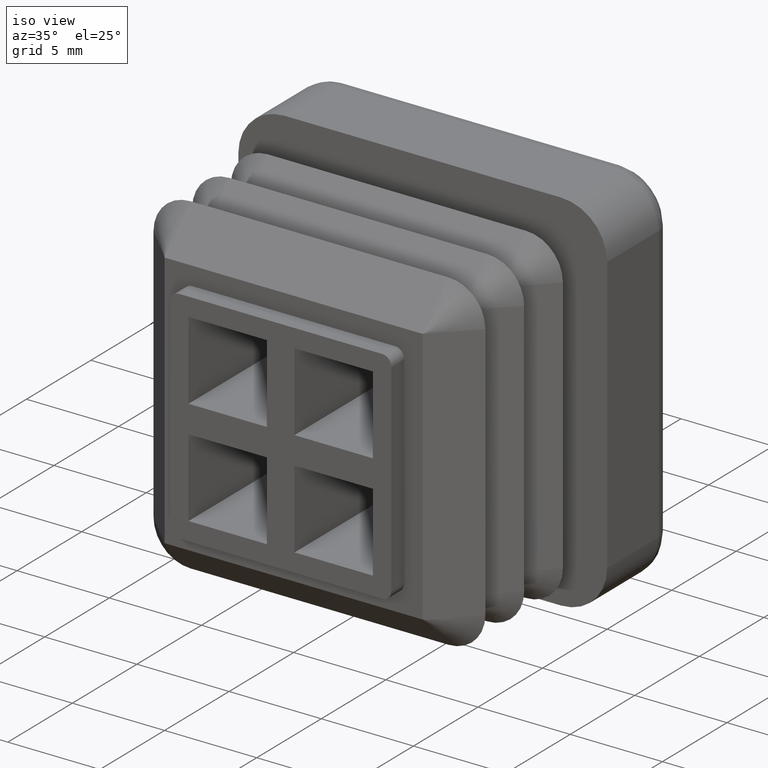
[diagram: clean part render]
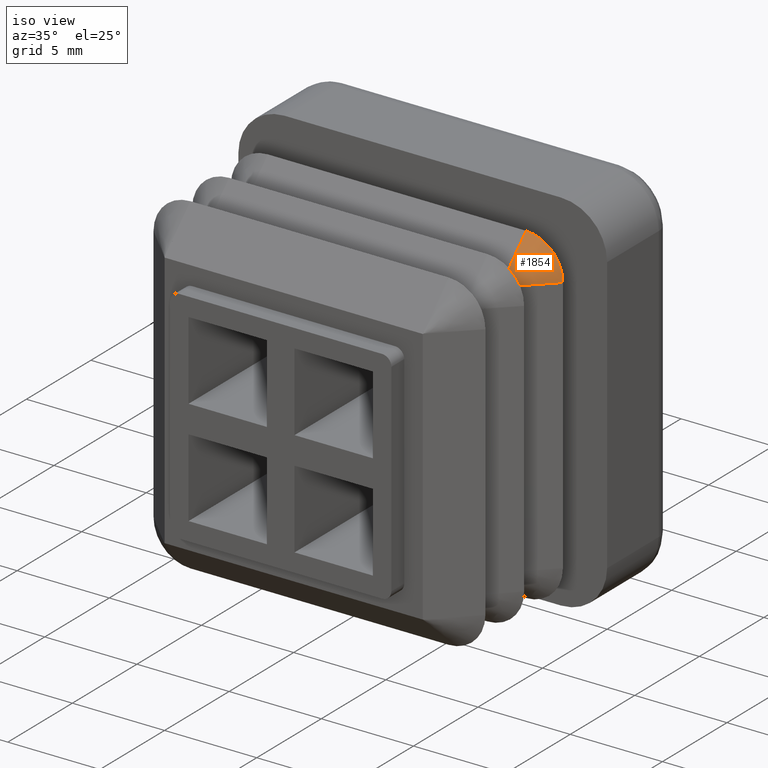
[diagram: same view with one face highlighted and labeled with its STEP entity id]
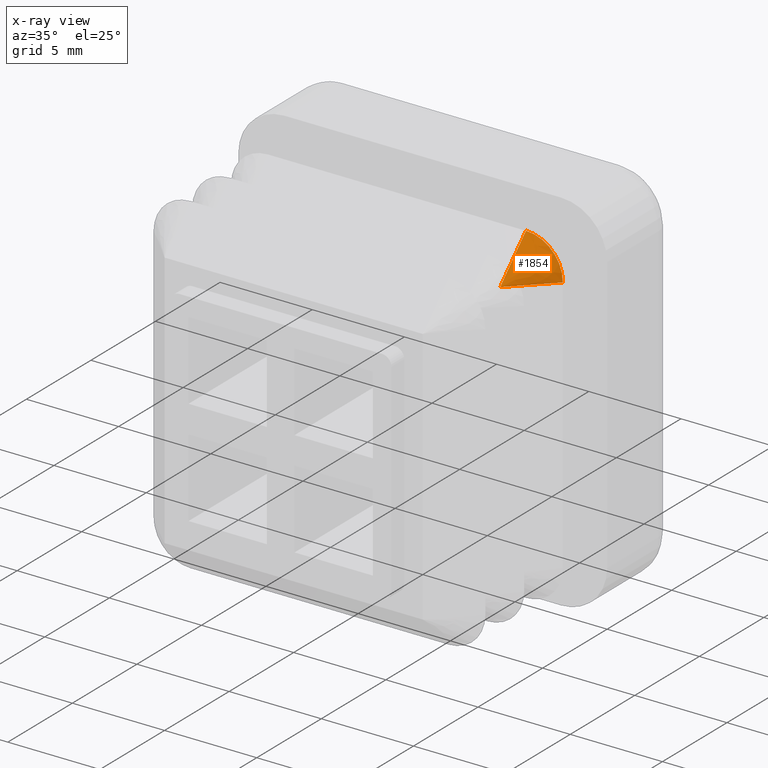
[diagram: x-ray of the same camera — body ghosted, the highlighted face saturated]
A machine part, iso view. The second image highlights one B-rep face of the part: STEP entity #1854.
The next image is the same camera in x-ray: the body ghosted, the highlighted face saturated — about 0% of this face is hidden behind the body in this view.
In plain terms, the highlighted face is a freeform B-spline surface patch.
Its self-contained STEP definition (entity closure, byte-faithful):
#1596=CARTESIAN_POINT('',(6.999999999999966,-2.0,8.999999999999982));
#1597=VERTEX_POINT('',#1596);
#1604=CARTESIAN_POINT('',(9.000000000000004,-2.0,6.999999999999997));
#1605=VERTEX_POINT('',#1604);
#1606=CARTESIAN_POINT('',(7.000000000000031,-2.0,6.999999999999997));
#1607=DIRECTION('',(0.0,1.0,0.0));
#1608=DIRECTION('',(0.0,0.0,-1.0));
#1609=AXIS2_PLACEMENT_3D('',#1606,#1607,#1608);
#1610=CIRCLE('',#1609,1.999999999999983);
#1611=EDGE_CURVE('',#1597,#1605,#1610,.T.);
#1681=CARTESIAN_POINT('',(7.000000000000026,-3.999999999999998,6.999999999999997));
#1682=VERTEX_POINT('',#1681);
#1799=CARTESIAN_POINT('',(6.999999999999966,-2.000000000000011,8.999999999999993));
#1800=DIRECTION('',(2.355139E-014,-0.707106781186547,-0.707106781186548));
#1801=VECTOR('',#1800,2.828427124746180);
#1802=LINE('',#1799,#1801);
#1803=EDGE_CURVE('',#1597,#1682,#1802,.T.);
#1826=CARTESIAN_POINT('',(7.000000000000032,-4.000000021000000,6.999999978999997));
#1827=CARTESIAN_POINT('',(6.999999991301547,-4.000000021000000,6.999999978999997));
#1828=CARTESIAN_POINT('',(6.999999985150789,-4.000000021000000,6.999999985150755));
#1829=CARTESIAN_POINT('',(6.999999979000031,-4.000000021000000,6.999999991301513));
#1830=CARTESIAN_POINT('',(6.999999979000032,-4.000000021000001,7.0));
#1831=CARTESIAN_POINT('',(6.999999867451624,-1.999999979000009,9.000000020999988));
#1832=CARTESIAN_POINT('',(7.828427078541356,-1.999999979000009,9.000000075903339));
#1833=CARTESIAN_POINT('',(8.414213577222366,-1.999999979000009,8.414213577222329));
#1834=CARTESIAN_POINT('',(9.000000075903349,-1.999999979000009,7.828427078541350));
#1835=CARTESIAN_POINT('',(9.000000021000023,-1.999999979000009,6.999999867451655));
#1843=(BOUNDED_SURFACE()B_SPLINE_SURFACE(2,1,((#1826,#1831),(#1827,#1832),(#1828,#1833),(#1829,#1834),(#1830,#1835)),.UNSPECIFIED.,.F.,.F.,.U.)B_SPLINE_SURFACE_WITH_KNOTS((3,2,3),(2,2),(0.374999989999995,0.500000000000000,0.625000010000000),(-1.000000E-008,0.952380962380948),.UNSPECIFIED.)GEOMETRIC_REPRESENTATION_ITEM()RATIONAL_B_SPLINE_SURFACE(((0.853553390593275,0.853553390593275),(0.853553378877539,0.853553378877539),(1.0,1.0),(0.853553378877545,0.853553378877545),(0.853553390593275,0.853553390593275)))REPRESENTATION_ITEM('')SURFACE());
#1844=CARTESIAN_POINT('',(9.000000000000011,-2.000000000000008,6.999999999999997));
#1845=DIRECTION('',(-0.707106781186550,-0.707106781186545,0.0));
#1846=VECTOR('',#1845,2.828427124746170);
#1847=LINE('',#1844,#1846);
#1848=EDGE_CURVE('',#1605,#1682,#1847,.T.);
#1849=ORIENTED_EDGE('',*,*,#1848,.F.);
#1850=ORIENTED_EDGE('',*,*,#1611,.F.);
#1851=ORIENTED_EDGE('',*,*,#1803,.T.);
#1852=EDGE_LOOP('',(#1849,#1850,#1851));
#1853=FACE_OUTER_BOUND('',#1852,.T.);
#1854=ADVANCED_FACE('',(#1853),#1843,.T.);